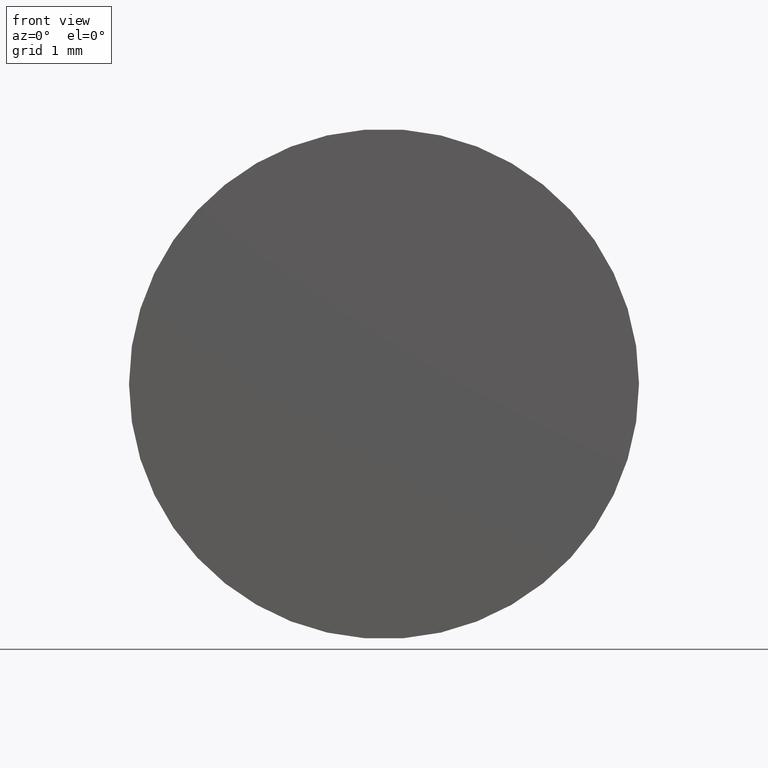
[diagram: clean part render]
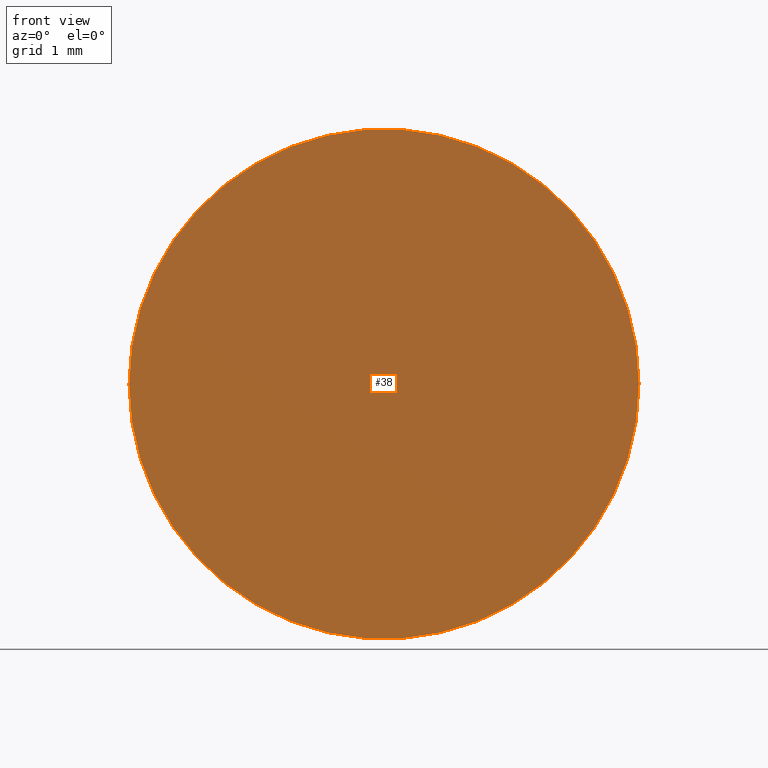
[diagram: same view with one face highlighted and labeled with its STEP entity id]
A machine part, front view. The second image highlights one B-rep face of the part: STEP entity #38.
In plain terms, the highlighted planar face has unit normal (0, 1, 0).
Its self-contained STEP definition (entity closure, byte-faithful):
#16=PLANE('',#45);
#20=FACE_OUTER_BOUND('',#24,.T.);
#24=EDGE_LOOP('',(#34));
#26=CIRCLE('',#43,4.);
#28=VERTEX_POINT('',#62);
#30=EDGE_CURVE('',#28,#28,#26,.T.);
#34=ORIENTED_EDGE('',*,*,#30,.T.);
#38=ADVANCED_FACE('',(#20),#16,.F.);
#43=AXIS2_PLACEMENT_3D('',#63,#52,#53);
#45=AXIS2_PLACEMENT_3D('',#65,#56,#57);
#52=DIRECTION('center_axis',(0.,-1.,0.));
#53=DIRECTION('ref_axis',(1.,0.,0.));
#56=DIRECTION('center_axis',(0.,1.,0.));
#57=DIRECTION('ref_axis',(0.,0.,1.));
#62=CARTESIAN_POINT('',(-4.,0.,4.89858719658941E-16));
#63=CARTESIAN_POINT('Origin',(0.,0.,0.));
#65=CARTESIAN_POINT('Origin',(2.72118023435153E-16,0.,0.));